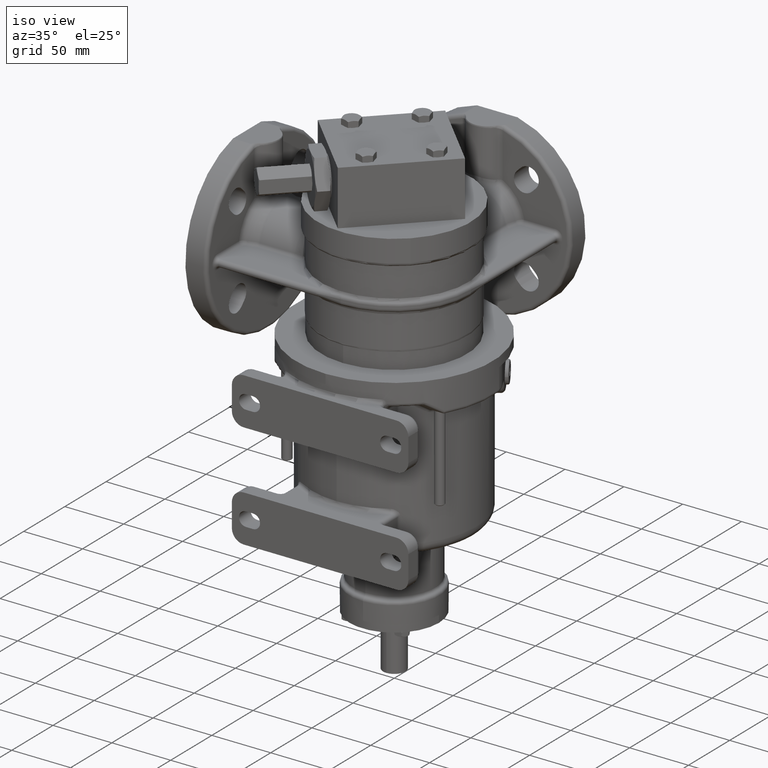
[diagram: clean part render]
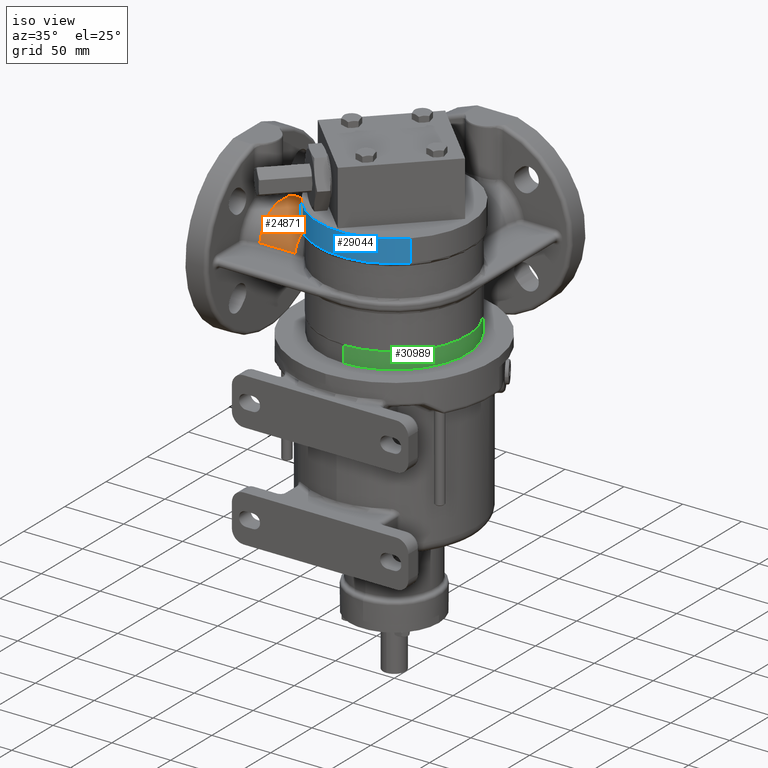
[diagram: same view with three faces highlighted in distinct colors, each labeled with its STEP entity id]
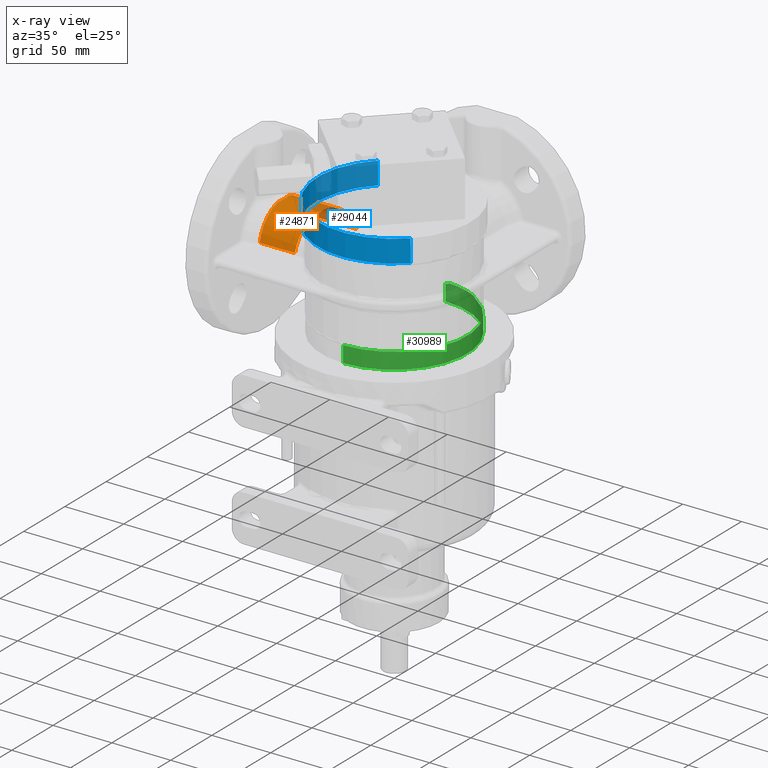
[diagram: x-ray of the same camera — body ghosted, the three highlighted faces saturated]
A machine part, iso view with three faces highlighted in distinct colors.
The next image is the same camera in x-ray (body ghosted, the three faces saturated) — at least one of them is partly hidden behind the body in this view.
Their STEP definitions:

[orange] entity #24871 — the highlighted cylindrical surface (partial cylindrical patch) has radius 29 mm, axis along (1, 0, 0).
#3393=CARTESIAN_POINT('',(-6.455446843990E1,-2.848567348456E1,
9.043749999070E1));
#3395=CARTESIAN_POINT('',(-6.000000000809E1,-6.816684442934E0,
1.131874584381E2));
#3463=CARTESIAN_POINT('',(-5.212310604698E1,2.534802582981E1,9.908820737128E1));
#3464=CARTESIAN_POINT('',(-5.221868961870E1,2.520503517673E1,9.934548148090E1));
#3465=CARTESIAN_POINT('',(-5.241387726845E1,2.490983762331E1,9.985817368207E1));
#3466=CARTESIAN_POINT('',(-5.271805548205E1,2.443860829481E1,1.006213017241E2));
#3467=CARTESIAN_POINT('',(-5.303201644786E1,2.393954488308E1,1.013759942938E2));
#3468=CARTESIAN_POINT('',(-5.335417232267E1,2.341321270376E1,1.021201675476E2));
#3469=CARTESIAN_POINT('',(-5.368273320515E1,2.286052898991E1,1.028515433018E2));
#3470=CARTESIAN_POINT('',(-5.401581958492E1,2.228263815783E1,1.035679077189E2));
#3471=CARTESIAN_POINT('',(-5.435149150629E1,2.168090714615E1,1.042671279992E2));
#3472=CARTESIAN_POINT('',(-5.468780072270E1,2.105688025342E1,1.049472201022E2));
#3473=CARTESIAN_POINT('',(-5.502283679679E1,2.041223373908E1,1.056063932787E2));
#3474=CARTESIAN_POINT('',(-5.535477009374E1,1.974872479692E1,1.062430861503E2));
#3475=CARTESIAN_POINT('',(-5.568188655004E1,1.906814283098E1,1.068559867211E2));
#3476=CARTESIAN_POINT('',(-5.600261358712E1,1.837226498675E1,1.074440388741E2));
#3477=CARTESIAN_POINT('',(-5.631553662304E1,1.766281853392E1,1.080064365850E2));
#3478=CARTESIAN_POINT('',(-5.661940695042E1,1.694145090535E1,1.085426087525E2));
#3479=CARTESIAN_POINT('',(-5.691314211247E1,1.620970775390E1,1.090521972727E2));
#3480=CARTESIAN_POINT('',(-5.719582035181E1,1.546901844764E1,1.095350311020E2));
#3481=CARTESIAN_POINT('',(-5.746667077081E1,1.472068793802E1,1.099910986567E2));
#3482=CARTESIAN_POINT('',(-5.772506066472E1,1.396589385637E1,1.104205202946E2));
#3483=CARTESIAN_POINT('',(-5.797048126062E1,1.320568770055E1,1.108235220988E2));
#3484=CARTESIAN_POINT('',(-5.820253285955E1,1.244099900316E1,1.112004117739E2));
#3485=CARTESIAN_POINT('',(-5.842091010951E1,1.167264155962E1,1.115515570658E2));
#3486=CARTESIAN_POINT('',(-5.862538791403E1,1.090132096383E1,1.118773668492E2));
#3487=CARTESIAN_POINT('',(-5.881580830113E1,1.012764285523E1,1.121782748391E2));
#3488=CARTESIAN_POINT('',(-5.899206841138E1,9.352121523328E0,1.124547257313E2));
#3489=CARTESIAN_POINT('',(-5.915410970407E1,8.575188476458E0,1.127071635775E2));
#3490=CARTESIAN_POINT('',(-5.930190837624E1,7.797200824435E0,1.129360221161E2));
#3491=CARTESIAN_POINT('',(-5.943546694459E1,7.018449341463E0,1.131417167943E2));
#3492=CARTESIAN_POINT('',(-5.955480691128E1,6.239166339511E0,1.133246382113E2));
#3493=CARTESIAN_POINT('',(-5.965996253402E1,5.459532377625E0,1.134851469354E2));
#3494=CARTESIAN_POINT('',(-5.975097532679E1,4.679684504515E0,1.136235689929E2));
#3495=CARTESIAN_POINT('',(-5.982788980593E1,3.899719635702E0,1.137401929667E2));
#3496=CARTESIAN_POINT('',(-5.989074927218E1,3.119707081406E0,1.138352663636E2));
#3497=CARTESIAN_POINT('',(-5.993959328395E1,2.339686124315E0,1.139089948094E2));
#3498=CARTESIAN_POINT('',(-5.997445460805E1,1.559688006480E0,1.139615386034E2));
#3499=CARTESIAN_POINT('',(-5.999535881282E1,7.797353352126E-1,
1.139930150521E2));
#3500=CARTESIAN_POINT('',(-5.999999995987E1,2.598203820670E-1,
1.139999999718E2));
#3501=CARTESIAN_POINT('',(-6.E1,0.E0,1.14E2));
#3503=CARTESIAN_POINT('',(-6.E1,0.E0,8.5E1));
#3504=DIRECTION('',(1.E0,0.E0,0.E0));
#3505=DIRECTION('',(0.E0,0.E0,1.E0));
#3506=AXIS2_PLACEMENT_3D('',#3503,#3504,#3505);
#3508=CARTESIAN_POINT('',(-6.455446843990E1,-2.848567348456E1,
9.043749999070E1));
#3509=CARTESIAN_POINT('',(-6.454312874053E1,-2.843172170838E1,
9.072013955922E1));
#3510=CARTESIAN_POINT('',(-6.451867657965E1,-2.831538523921E1,
9.128391208183E1));
#3511=CARTESIAN_POINT('',(-6.447670908085E1,-2.811571447116E1,
9.212428034053E1));
#3512=CARTESIAN_POINT('',(-6.442948095865E1,-2.789101531113E1,
9.295865840097E1));
#3513=CARTESIAN_POINT('',(-6.437702586726E1,-2.764144747753E1,
9.378632947449E1));
#3514=CARTESIAN_POINT('',(-6.431938109236E1,-2.736718846922E1,
9.460658352117E1));
#3515=CARTESIAN_POINT('',(-6.425658800570E1,-2.706843500677E1,
9.541871125165E1));
#3516=CARTESIAN_POINT('',(-6.418869195458E1,-2.674540302109E1,
9.622200606848E1));
#3517=CARTESIAN_POINT('',(-6.411574238262E1,-2.639832778154E1,
9.701576443339E1));
#3518=CARTESIAN_POINT('',(-6.403779314223E1,-2.602746549296E1,
9.779928364012E1));
#3519=CARTESIAN_POINT('',(-6.395490216797E1,-2.563309132687E1,
9.857186735086E1));
#3520=CARTESIAN_POINT('',(-6.386713137755E1,-2.521550069243E1,
9.933282337548E1));
#3521=CARTESIAN_POINT('',(-6.377454731609E1,-2.477500937005E1,
1.000814645008E2));
#3522=CARTESIAN_POINT('',(-6.367722054494E1,-2.431195379114E1,
1.008171089334E2));
#3523=CARTESIAN_POINT('',(-6.357522626804E1,-2.382669118801E1,
1.015390810200E2));
#3524=CARTESIAN_POINT('',(-6.346864392857E1,-2.331959983339E1,
1.022467118147E2));
#3525=CARTESIAN_POINT('',(-6.335755749895E1,-2.279107918144E1,
1.029393398184E2));
#3526=CARTESIAN_POINT('',(-6.324205541642E1,-2.224154999402E1,
1.036163117199E2));
#3527=CARTESIAN_POINT('',(-6.312223063590E1,-2.167145452267E1,
1.042769830819E2));
#3528=CARTESIAN_POINT('',(-6.299818060853E1,-2.108125638503E1,
1.049207193687E2));
#3529=CARTESIAN_POINT('',(-6.287000731194E1,-2.047144085954E1,
1.055468964808E2));
#3530=CARTESIAN_POINT('',(-6.273781728458E1,-1.984251466646E1,
1.061549018643E2));
#3531=CARTESIAN_POINT('',(-6.260172150188E1,-1.919500601001E1,
1.067441352927E2));
#3532=CARTESIAN_POINT('',(-6.246183551955E1,-1.852946440907E1,
1.073140098502E2));
#3533=CARTESIAN_POINT('',(-6.231827922790E1,-1.784646058076E1,
1.078639528291E2));
#3534=CARTESIAN_POINT('',(-6.217117702941E1,-1.714658617400E1,
1.083934067311E2));
#3535=CARTESIAN_POINT('',(-6.202065762360E1,-1.643045351204E1,
1.089018302185E2));
#3536=CARTESIAN_POINT('',(-6.186685396153E1,-1.569869524427E1,
1.093886991016E2));
#3537=CARTESIAN_POINT('',(-6.170990320695E1,-1.495196393151E1,
1.098535073291E2));
#3538=CARTESIAN_POINT('',(-6.154994660538E1,-1.419093157442E1,
1.102957679701E2));
#3539=CARTESIAN_POINT('',(-6.138712937356E1,-1.341628907755E1,
1.107150141902E2));
#3540=CARTESIAN_POINT('',(-6.122160056367E1,-1.262874563018E1,
1.111108002212E2));
#3541=CARTESIAN_POINT('',(-6.105351295460E1,-1.182902804616E1,
1.114827023054E2));
#3542=CARTESIAN_POINT('',(-6.088302284605E1,-1.101787996834E1,
1.118303196268E2));
#3543=CARTESIAN_POINT('',(-6.071028997144E1,-1.019606137819E1,
1.121532751261E2));
#3544=CARTESIAN_POINT('',(-6.053547705658E1,-9.364346485939E0,
1.124512166960E2));
#3545=CARTESIAN_POINT('',(-6.035875063895E1,-8.523527654794E0,
1.127238166720E2));
#3546=CARTESIAN_POINT('',(-6.018027803266E1,-7.674400868225E0,
1.129707761998E2));
#3547=CARTESIAN_POINT('',(-6.006025008161E1,-7.103338848297E0,
1.131181356732E2));
#3548=CARTESIAN_POINT('',(-6.000000000809E1,-6.816684442934E0,
1.131874584381E2));
#3550=DIRECTION('',(-1.E0,7.017115645732E-11,3.121450662298E-10));
#3551=VECTOR('',#3550,2.978726907217E1);
#3552=CARTESIAN_POINT('',(-6.455446843990E1,-2.848567348456E1,
9.043749999070E1));
#3553=LINE('',#3552,#3551);
#3554=CARTESIAN_POINT('',(-9.434173751206E1,6.299807359499E0,1.133074623948E2));
#3555=CARTESIAN_POINT('',(-9.426756336626E1,6.131419765927E0,1.133449369317E2));
#3556=CARTESIAN_POINT('',(-9.412592018214E1,5.794462410599E0,1.134167724811E2));
#3557=CARTESIAN_POINT('',(-9.393311753587E1,5.288819732247E0,1.135151979172E2));
#3558=CARTESIAN_POINT('',(-9.375957463589E1,4.783403992566E0,1.136043094876E2));
#3559=CARTESIAN_POINT('',(-9.360479320310E1,4.278280632400E0,1.136841975974E2));
#3560=CARTESIAN_POINT('',(-9.346834257699E1,3.773535929444E0,1.137549427667E2));
#3561=CARTESIAN_POINT('',(-9.334983277779E1,3.269225415318E0,1.138166263264E2));
#3562=CARTESIAN_POINT('',(-9.324891374239E1,2.765353071466E0,1.138693288844E2));
#3563=CARTESIAN_POINT('',(-9.316528369737E1,2.261902095247E0,1.139131238784E2));
#3564=CARTESIAN_POINT('',(-9.309868807414E1,1.758827580941E0,1.139480765718E2));
#3565=CARTESIAN_POINT('',(-9.304892197746E1,1.256066089446E0,1.139742413933E2));
#3566=CARTESIAN_POINT('',(-9.301583087425E1,7.535388091186E-1,
1.139916605304E2));
#3567=CARTESIAN_POINT('',(-9.299931138209E1,2.511562476710E-1,
1.140003627289E2));
#3568=CARTESIAN_POINT('',(-9.299931171061E1,-2.511773546725E-1,
1.140003625460E2));
#3569=CARTESIAN_POINT('',(-9.301583186764E1,-7.535598447451E-1,
1.139916599831E2));
#3570=CARTESIAN_POINT('',(-9.304892364509E1,-1.256086961030E0,
1.139742404871E2));
#3571=CARTESIAN_POINT('',(-9.309869040523E1,-1.758848125076E0,
1.139480753213E2));
#3572=CARTESIAN_POINT('',(-9.316528666312E1,-2.261922161624E0,
1.139131223053E2));
#3573=CARTESIAN_POINT('',(-9.324891730744E1,-2.765372581566E0,
1.138693270135E2));
#3574=CARTESIAN_POINT('',(-9.334983691328E1,-3.269244311750E0,
1.138166241745E2));
#3575=CARTESIAN_POINT('',(-9.346834704494E1,-3.773553505124E0,
1.137549404618E2));
#3576=CARTESIAN_POINT('',(-9.360479842176E1,-4.278298551277E0,
1.136841949106E2));
#3577=CARTESIAN_POINT('',(-9.375957926076E1,-4.783418053042E0,
1.136043071295E2));
#3578=CARTESIAN_POINT('',(-9.393312334255E1,-5.288835834801E0,
1.135151949408E2));
#3579=CARTESIAN_POINT('',(-9.412592562382E1,-5.794475748443E0,
1.134167697156E2));
#3580=CARTESIAN_POINT('',(-9.426756568650E1,-6.131425014457E0,
1.133449357631E2));
#3581=CARTESIAN_POINT('',(-9.434173751206E1,-6.299807359499E0,
1.133074623948E2));
#3583=DIRECTION('',(1.E0,0.E0,0.E0));
#3584=VECTOR('',#3583,4.221863149977E1);
#3585=CARTESIAN_POINT('',(-9.434173751206E1,2.848567348247E1,9.04375E1));
#3586=LINE('',#3585,#3584);
#3587=CARTESIAN_POINT('',(-5.212310601229E1,0.E0,8.5E1));
#3588=DIRECTION('',(1.E0,0.E0,0.E0));
#3589=DIRECTION('',(0.E0,9.822646028439E-1,1.875E-1));
#3590=AXIS2_PLACEMENT_3D('',#3587,#3588,#3589);
#3607=CARTESIAN_POINT('',(-9.434173751206E1,1.718167647022E-13,8.5E1));
#3608=DIRECTION('',(1.E0,0.E0,0.E0));
#3609=DIRECTION('',(0.E0,-2.172347365344E-1,9.761193929243E-1));
#3610=AXIS2_PLACEMENT_3D('',#3607,#3608,#3609);
#3662=CARTESIAN_POINT('',(-9.434173751206E1,1.718167647022E-13,8.5E1));
#3663=DIRECTION('',(1.E0,0.E0,0.E0));
#3664=DIRECTION('',(0.E0,9.822646028439E-1,1.875E-1));
#3665=AXIS2_PLACEMENT_3D('',#3662,#3663,#3664);
#4933=CARTESIAN_POINT('',(-5.212310601229E1,2.848567348247E1,9.04375E1));
#17193=VERTEX_POINT('',#3395);
#17257=CARTESIAN_POINT('',(-6.E1,0.E0,1.14E2));
#17258=VERTEX_POINT('',#17257);
#17271=VERTEX_POINT('',#3393);
#17273=CARTESIAN_POINT('',(-9.434173751206E1,-2.848567348247E1,9.04375E1));
#17274=VERTEX_POINT('',#17273);
#17413=VERTEX_POINT('',#4933);
#17415=CARTESIAN_POINT('',(-9.434173751206E1,2.848567348247E1,9.04375E1));
#17416=VERTEX_POINT('',#17415);
#17425=VERTEX_POINT('',#3463);
#17444=CARTESIAN_POINT('',(-9.434173751206E1,6.299807359499E0,
1.133074623948E2));
#17445=VERTEX_POINT('',#17444);
#17446=VERTEX_POINT('',#3581);
#24849=CARTESIAN_POINT('',(-1.07E2,0.E0,8.5E1));
#24850=DIRECTION('',(1.E0,0.E0,0.E0));
#24851=DIRECTION('',(0.E0,-1.E0,0.E0));
#24852=AXIS2_PLACEMENT_3D('',#24849,#24850,#24851);
#24853=CYLINDRICAL_SURFACE('',#24852,2.9E1);
#24854=ORIENTED_EDGE('',*,*,#23758,.T.);
#24855=ORIENTED_EDGE('',*,*,#23774,.T.);
#24856=ORIENTED_EDGE('',*,*,#24842,.F.);
#24858=ORIENTED_EDGE('',*,*,#24857,.T.);
#24860=ORIENTED_EDGE('',*,*,#24859,.F.);
#24862=ORIENTED_EDGE('',*,*,#24861,.F.);
#24864=ORIENTED_EDGE('',*,*,#24863,.F.);
#24866=ORIENTED_EDGE('',*,*,#24865,.T.);
#24868=ORIENTED_EDGE('',*,*,#24867,.T.);
#24869=EDGE_LOOP('',(#24854,#24855,#24856,#24858,#24860,#24862,#24864,#24866,
#24868));
#24870=FACE_OUTER_BOUND('',#24869,.F.);
#24871=ADVANCED_FACE('',(#24870),#24853,.T.);
#3502=B_SPLINE_CURVE_WITH_KNOTS('',3,(#3463,#3464,#3465,#3466,#3467,#3468,#3469,
#3470,#3471,#3472,#3473,#3474,#3475,#3476,#3477,#3478,#3479,#3480,#3481,#3482,
#3483,#3484,#3485,#3486,#3487,#3488,#3489,#3490,#3491,#3492,#3493,#3494,#3495,
#3496,#3497,#3498,#3499,#3500,#3501),.UNSPECIFIED.,.F.,.F.,(4,1,1,1,1,1,1,1,1,1,
1,1,1,1,1,1,1,1,1,1,1,1,1,1,1,1,1,1,1,1,1,1,1,1,1,1,4),(0.E0,2.777777777778E-2,
5.555555555556E-2,8.333333333333E-2,1.111111111111E-1,1.388888888889E-1,
1.666666666667E-1,1.944444444444E-1,2.222222222222E-1,2.5E-1,2.777777777778E-1,
3.055555555556E-1,3.333333333333E-1,3.611111111111E-1,3.888888888889E-1,
4.166666666667E-1,4.444444444444E-1,4.722222222222E-1,5.E-1,5.277777777778E-1,
5.555555555556E-1,5.833333333333E-1,6.111111111111E-1,6.388888888889E-1,
6.666666666667E-1,6.944444444444E-1,7.222222222222E-1,7.5E-1,7.777777777778E-1,
8.055555555556E-1,8.333333333333E-1,8.611111111111E-1,8.888888888889E-1,
9.166666666667E-1,9.444444444444E-1,9.722222222222E-1,1.E0),.UNSPECIFIED.);
#3507=CIRCLE('',#3506,2.9E1);
#3549=B_SPLINE_CURVE_WITH_KNOTS('',3,(#3508,#3509,#3510,#3511,#3512,#3513,#3514,
#3515,#3516,#3517,#3518,#3519,#3520,#3521,#3522,#3523,#3524,#3525,#3526,#3527,
#3528,#3529,#3530,#3531,#3532,#3533,#3534,#3535,#3536,#3537,#3538,#3539,#3540,
#3541,#3542,#3543,#3544,#3545,#3546,#3547,#3548),.UNSPECIFIED.,.F.,.F.,(4,1,1,1,
1,1,1,1,1,1,1,1,1,1,1,1,1,1,1,1,1,1,1,1,1,1,1,1,1,1,1,1,1,1,1,1,1,1,4),(0.E0,
2.631578947368E-2,5.263157894737E-2,7.894736842105E-2,1.052631578947E-1,
1.315789473684E-1,1.578947368421E-1,1.842105263158E-1,2.105263157895E-1,
2.368421052632E-1,2.631578947368E-1,2.894736842105E-1,3.157894736842E-1,
3.421052631579E-1,3.684210526316E-1,3.947368421053E-1,4.210526315789E-1,
4.473684210526E-1,4.736842105263E-1,5.E-1,5.263157894737E-1,5.526315789474E-1,
5.789473684211E-1,6.052631578947E-1,6.315789473684E-1,6.578947368421E-1,
6.842105263158E-1,7.105263157895E-1,7.368421052632E-1,7.631578947368E-1,
7.894736842105E-1,8.157894736842E-1,8.421052631579E-1,8.684210526316E-1,
8.947368421053E-1,9.210526315789E-1,9.473684210526E-1,9.736842105263E-1,1.E0),
.UNSPECIFIED.);
#3582=B_SPLINE_CURVE_WITH_KNOTS('',3,(#3554,#3555,#3556,#3557,#3558,#3559,#3560,
#3561,#3562,#3563,#3564,#3565,#3566,#3567,#3568,#3569,#3570,#3571,#3572,#3573,
#3574,#3575,#3576,#3577,#3578,#3579,#3580,#3581),.UNSPECIFIED.,.F.,.F.,(4,1,1,1,
1,1,1,1,1,1,1,1,1,1,1,1,1,1,1,1,1,1,1,1,1,4),(0.E0,4.E-2,8.E-2,1.2E-1,1.6E-1,
2.E-1,2.4E-1,2.8E-1,3.2E-1,3.6E-1,4.E-1,4.4E-1,4.8E-1,5.2E-1,5.6E-1,6.E-1,
6.4E-1,6.8E-1,7.2E-1,7.6E-1,8.E-1,8.4E-1,8.8E-1,9.2E-1,9.6E-1,1.E0),
.UNSPECIFIED.);
#3591=CIRCLE('',#3590,2.9E1);
#3611=CIRCLE('',#3610,2.9E1);
#3666=CIRCLE('',#3665,2.9E1);
#23758=EDGE_CURVE('',#17425,#17258,#3502,.T.);
#23774=EDGE_CURVE('',#17258,#17193,#3507,.T.);
#24842=EDGE_CURVE('',#17271,#17193,#3549,.T.);
#24857=EDGE_CURVE('',#17271,#17274,#3553,.T.);
#24859=EDGE_CURVE('',#17446,#17274,#3611,.T.);
#24861=EDGE_CURVE('',#17445,#17446,#3582,.T.);
#24863=EDGE_CURVE('',#17416,#17445,#3666,.T.);
#24865=EDGE_CURVE('',#17416,#17413,#3586,.T.);
#24867=EDGE_CURVE('',#17413,#17425,#3591,.T.);

[blue] entity #29044 — the highlighted cylindrical surface (partial cylindrical patch) has radius 65 mm, axis along (0, 0, 1).
#5374=CARTESIAN_POINT('',(0.E0,0.E0,1.19E2));
#5375=DIRECTION('',(0.E0,0.E0,-1.E0));
#5376=DIRECTION('',(7.071067811865E-1,-7.071067811865E-1,0.E0));
#5377=AXIS2_PLACEMENT_3D('',#5374,#5375,#5376);
#5379=CARTESIAN_POINT('',(0.E0,0.E0,1.38E2));
#5380=DIRECTION('',(0.E0,0.E0,1.E0));
#5381=DIRECTION('',(-7.071067811865E-1,7.071067811865E-1,0.E0));
#5382=AXIS2_PLACEMENT_3D('',#5379,#5380,#5381);
#5389=DIRECTION('',(0.E0,0.E0,-1.E0));
#5390=VECTOR('',#5389,1.9E1);
#5391=CARTESIAN_POINT('',(4.596194077713E1,-4.596194077713E1,1.38E2));
#5392=LINE('',#5391,#5390);
#5398=DIRECTION('',(0.E0,0.E0,-1.E0));
#5399=VECTOR('',#5398,1.9E1);
#5400=CARTESIAN_POINT('',(-4.596194077713E1,4.596194077713E1,1.38E2));
#5401=LINE('',#5400,#5399);
#17625=CARTESIAN_POINT('',(-4.596194077713E1,4.596194077713E1,1.38E2));
#17626=CARTESIAN_POINT('',(4.596194077713E1,-4.596194077713E1,1.38E2));
#17627=VERTEX_POINT('',#17625);
#17628=VERTEX_POINT('',#17626);
#17629=CARTESIAN_POINT('',(-4.596194077713E1,4.596194077713E1,1.19E2));
#17630=CARTESIAN_POINT('',(4.596194077713E1,-4.596194077713E1,1.19E2));
#17631=VERTEX_POINT('',#17629);
#17632=VERTEX_POINT('',#17630);
#29030=CARTESIAN_POINT('',(0.E0,0.E0,8.6025E1));
#29031=DIRECTION('',(0.E0,0.E0,1.E0));
#29032=DIRECTION('',(7.071067811865E-1,-7.071067811865E-1,0.E0));
#29033=AXIS2_PLACEMENT_3D('',#29030,#29031,#29032);
#29034=CYLINDRICAL_SURFACE('',#29033,6.5E1);
#29035=ORIENTED_EDGE('',*,*,#29021,.T.);
#29037=ORIENTED_EDGE('',*,*,#29036,.F.);
#29039=ORIENTED_EDGE('',*,*,#29038,.T.);
#29041=ORIENTED_EDGE('',*,*,#29040,.T.);
#29042=EDGE_LOOP('',(#29035,#29037,#29039,#29041));
#29043=FACE_OUTER_BOUND('',#29042,.F.);
#29044=ADVANCED_FACE('',(#29043),#29034,.T.);
#5378=CIRCLE('',#5377,6.5E1);
#5383=CIRCLE('',#5382,6.5E1);
#29021=EDGE_CURVE('',#17632,#17631,#5378,.T.);
#29036=EDGE_CURVE('',#17627,#17631,#5401,.T.);
#29038=EDGE_CURVE('',#17627,#17628,#5383,.T.);
#29040=EDGE_CURVE('',#17628,#17632,#5392,.T.);

[green] entity #30989 — the highlighted cylindrical surface (partial cylindrical patch) has radius 62 mm, axis along (0, 0, -1).
#8320=DIRECTION('',(0.E0,0.E0,-1.E0));
#8321=VECTOR('',#8320,1.384168760482E1);
#8322=CARTESIAN_POINT('',(-2.713294142401E-14,-6.2E1,4.984168760482E1));
#8323=LINE('',#8322,#8321);
#8324=DIRECTION('',(0.E0,0.E0,-1.E0));
#8325=VECTOR('',#8324,1.384168760482E1);
#8326=CARTESIAN_POINT('',(1.335055926862E-13,6.2E1,4.984168760482E1));
#8327=LINE('',#8326,#8325);
#8363=CARTESIAN_POINT('',(0.E0,0.E0,4.984168760482E1));
#8364=DIRECTION('',(0.E0,0.E0,-1.E0));
#8365=DIRECTION('',(5.150787536377E-1,8.571428571429E-1,0.E0));
#8366=AXIS2_PLACEMENT_3D('',#8363,#8364,#8365);
#8368=CARTESIAN_POINT('',(3.193488272554E1,5.314285714286E1,4.984168760482E1));
#8369=CARTESIAN_POINT('',(3.185814065860E1,5.318897338575E1,4.984168760482E1));
#8370=CARTESIAN_POINT('',(3.170570842867E1,5.328012263152E1,4.984490297535E1));
#8371=CARTESIAN_POINT('',(3.147928208475E1,5.341420583645E1,4.985913960942E1));
#8372=CARTESIAN_POINT('',(3.125800095774E1,5.354398815162E1,4.988240978337E1));
#8373=CARTESIAN_POINT('',(3.104320203962E1,5.366879325773E1,4.991427346666E1));
#8374=CARTESIAN_POINT('',(3.083714697465E1,5.378743585191E1,4.995405590300E1));
#8375=CARTESIAN_POINT('',(3.064157118176E1,5.389907251118E1,5.000092304901E1));
#8376=CARTESIAN_POINT('',(3.045767376066E1,5.400318462721E1,5.005399132677E1));
#8377=CARTESIAN_POINT('',(3.028663503012E1,5.409927522895E1,5.011218669241E1));
#8378=CARTESIAN_POINT('',(3.012864833629E1,5.418740182401E1,5.017461575501E1));
#8379=CARTESIAN_POINT('',(2.998414460813E1,5.426747959057E1,5.024019016509E1));
#8380=CARTESIAN_POINT('',(2.985248549382E1,5.434000292034E1,5.030822404077E1));
#8381=CARTESIAN_POINT('',(2.973332137053E1,5.440528579154E1,5.037793338602E1));
#8382=CARTESIAN_POINT('',(2.962607923884E1,5.446374834242E1,5.044863316585E1));
#8383=CARTESIAN_POINT('',(2.952978800828E1,5.451600843400E1,5.051998601797E1));
#8384=CARTESIAN_POINT('',(2.944414159741E1,5.456230664662E1,5.059123037004E1));
#8385=CARTESIAN_POINT('',(2.936849538313E1,5.460305521979E1,5.066180949335E1));
#8386=CARTESIAN_POINT('',(2.930185642870E1,5.463884034E1,5.073159050778E1));
#8387=CARTESIAN_POINT('',(2.924356174492E1,5.467005907915E1,5.080024010327E1));
#8388=CARTESIAN_POINT('',(2.919280545573E1,5.469717602311E1,5.086766768157E1));
#8389=CARTESIAN_POINT('',(2.914864704348E1,5.472071908846E1,5.093418823879E1));
#8390=CARTESIAN_POINT('',(2.912312204242E1,5.473430315195E1,5.097816990156E1));
#8391=CARTESIAN_POINT('',(2.911130858625E1,5.474058560516E1,5.1E1));
#8393=CARTESIAN_POINT('',(0.E0,0.E0,5.1E1));
#8394=DIRECTION('',(0.E0,0.E0,-1.E0));
#8395=DIRECTION('',(5.230907080844E-2,9.986309433976E-1,0.E0));
#8396=AXIS2_PLACEMENT_3D('',#8393,#8394,#8395);
#8398=CARTESIAN_POINT('',(3.243162390123E0,6.191511849065E1,5.1E1));
#8399=CARTESIAN_POINT('',(3.229773618754E0,6.191581980498E1,5.097812580013E1));
#8400=CARTESIAN_POINT('',(3.200835526069E0,6.191732695910E1,5.093405381662E1));
#8401=CARTESIAN_POINT('',(3.150716944185E0,6.191989941221E1,5.086737236852E1));
#8402=CARTESIAN_POINT('',(3.093103785707E0,6.192280660678E1,5.079982565796E1));
#8403=CARTESIAN_POINT('',(3.026939253369E0,6.192607936797E1,5.073111044865E1));
#8404=CARTESIAN_POINT('',(2.951329565971E0,6.192973292297E1,5.066133122194E1));
#8405=CARTESIAN_POINT('',(2.865468576429E0,6.193376994238E1,5.059078728694E1));
#8406=CARTESIAN_POINT('',(2.768570457841E0,6.193818330038E1,5.051984292975E1));
#8407=CARTESIAN_POINT('',(2.659140097869E0,6.194298550572E1,5.044850403943E1));
#8408=CARTESIAN_POINT('',(2.536434557744E0,6.194814041607E1,5.037744089650E1));
#8409=CARTESIAN_POINT('',(2.399543886018E0,6.195360460217E1,5.030724036043E1));
#8410=CARTESIAN_POINT('',(2.248049319202E0,6.195929835878E1,5.023878528538E1));
#8411=CARTESIAN_POINT('',(2.082480306711E0,6.196509681278E1,5.017323805071E1));
#8412=CARTESIAN_POINT('',(1.902333003069E0,6.197090332872E1,5.011121812003E1));
#8413=CARTESIAN_POINT('',(1.707301522105E0,6.197659859089E1,5.005346336711E1));
#8414=CARTESIAN_POINT('',(1.497443762982E0,6.198204118435E1,5.000079462412E1));
#8415=CARTESIAN_POINT('',(1.272532377856E0,6.198708400809E1,4.995397938244E1));
#8416=CARTESIAN_POINT('',(1.034548442268E0,6.199152757050E1,4.991417673520E1));
#8417=CARTESIAN_POINT('',(7.861523770186E-1,6.199518747351E1,4.988233838156E1));
#8418=CARTESIAN_POINT('',(5.294253696426E-1,6.199792193742E1,4.985907589022E1));
#8419=CARTESIAN_POINT('',(2.663569213934E-1,6.199961614933E1,4.984487948742E1));
#8420=CARTESIAN_POINT('',(8.921563013739E-2,6.2E1,4.984168760482E1));
#8421=CARTESIAN_POINT('',(1.335055926862E-13,6.2E1,4.984168760482E1));
#8936=CARTESIAN_POINT('',(0.E0,0.E0,3.6E1));
#8937=DIRECTION('',(0.E0,0.E0,-1.E0));
#8938=DIRECTION('',(0.E0,1.E0,0.E0));
#8939=AXIS2_PLACEMENT_3D('',#8936,#8937,#8938);
#16891=CARTESIAN_POINT('',(3.822313632567E-14,6.2E1,3.6E1));
#16892=CARTESIAN_POINT('',(-3.063030617095E-14,-6.2E1,3.6E1));
#16893=VERTEX_POINT('',#16891);
#16894=VERTEX_POINT('',#16892);
#17596=CARTESIAN_POINT('',(2.911130858625E1,5.474058560516E1,5.1E1));
#17598=VERTEX_POINT('',#17596);
#17606=CARTESIAN_POINT('',(3.243162390123E0,6.191511849065E1,5.1E1));
#17607=VERTEX_POINT('',#17606);
#17618=CARTESIAN_POINT('',(3.193488272554E1,5.314285714286E1,4.984168760482E1));
#17619=CARTESIAN_POINT('',(-2.131627207280E-14,-6.2E1,4.984168760482E1));
#17620=VERTEX_POINT('',#17618);
#17621=VERTEX_POINT('',#17619);
#17622=VERTEX_POINT('',#8421);
#30971=CARTESIAN_POINT('',(0.E0,0.E0,5.5625E1));
#30972=DIRECTION('',(0.E0,0.E0,-1.E0));
#30973=DIRECTION('',(0.E0,1.E0,0.E0));
#30974=AXIS2_PLACEMENT_3D('',#30971,#30972,#30973);
#30975=CYLINDRICAL_SURFACE('',#30974,6.2E1);
#30976=ORIENTED_EDGE('',*,*,#30960,.F.);
#30978=ORIENTED_EDGE('',*,*,#30977,.T.);
#30980=ORIENTED_EDGE('',*,*,#30979,.F.);
#30982=ORIENTED_EDGE('',*,*,#30981,.T.);
#30983=ORIENTED_EDGE('',*,*,#30946,.T.);
#30985=ORIENTED_EDGE('',*,*,#30984,.T.);
#30986=ORIENTED_EDGE('',*,*,#30942,.F.);
#30987=EDGE_LOOP('',(#30976,#30978,#30980,#30982,#30983,#30985,#30986));
#30988=FACE_OUTER_BOUND('',#30987,.F.);
#30989=ADVANCED_FACE('',(#30988),#30975,.T.);
#8367=CIRCLE('',#8366,6.2E1);
#8392=B_SPLINE_CURVE_WITH_KNOTS('',3,(#8368,#8369,#8370,#8371,#8372,#8373,#8374,
#8375,#8376,#8377,#8378,#8379,#8380,#8381,#8382,#8383,#8384,#8385,#8386,#8387,
#8388,#8389,#8390,#8391),.UNSPECIFIED.,.F.,.F.,(4,1,1,1,1,1,1,1,1,1,1,1,1,1,1,1,
1,1,1,1,1,4),(0.E0,4.761904761905E-2,9.523809523810E-2,1.428571428571E-1,
1.904761904762E-1,2.380952380952E-1,2.857142857143E-1,3.333333333333E-1,
3.809523809524E-1,4.285714285714E-1,4.761904761905E-1,5.238095238095E-1,
5.714285714286E-1,6.190476190476E-1,6.666666666667E-1,7.142857142857E-1,
7.619047619048E-1,8.095238095238E-1,8.571428571429E-1,9.047619047619E-1,
9.523809523810E-1,1.E0),.UNSPECIFIED.);
#8397=CIRCLE('',#8396,6.2E1);
#8422=B_SPLINE_CURVE_WITH_KNOTS('',3,(#8398,#8399,#8400,#8401,#8402,#8403,#8404,
#8405,#8406,#8407,#8408,#8409,#8410,#8411,#8412,#8413,#8414,#8415,#8416,#8417,
#8418,#8419,#8420,#8421),.UNSPECIFIED.,.F.,.F.,(4,1,1,1,1,1,1,1,1,1,1,1,1,1,1,1,
1,1,1,1,1,4),(0.E0,4.761904761905E-2,9.523809523810E-2,1.428571428571E-1,
1.904761904762E-1,2.380952380952E-1,2.857142857143E-1,3.333333333333E-1,
3.809523809524E-1,4.285714285714E-1,4.761904761905E-1,5.238095238095E-1,
5.714285714286E-1,6.190476190476E-1,6.666666666667E-1,7.142857142857E-1,
7.619047619048E-1,8.095238095238E-1,8.571428571429E-1,9.047619047619E-1,
9.523809523810E-1,1.E0),.UNSPECIFIED.);
#8940=CIRCLE('',#8939,6.2E1);
#30942=EDGE_CURVE('',#17621,#16894,#8323,.T.);
#30946=EDGE_CURVE('',#17622,#16893,#8327,.T.);
#30960=EDGE_CURVE('',#17620,#17621,#8367,.T.);
#30977=EDGE_CURVE('',#17620,#17598,#8392,.T.);
#30979=EDGE_CURVE('',#17607,#17598,#8397,.T.);
#30981=EDGE_CURVE('',#17607,#17622,#8422,.T.);
#30984=EDGE_CURVE('',#16893,#16894,#8940,.T.);